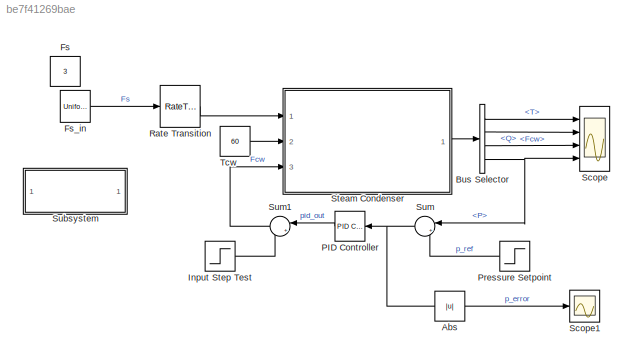
MODEL slx_be7f41269bae
KIND model
CONFIG AbsTol = auto
CONFIG EnableMultiTasking = on
CONFIG FixedStep = Ts
CONFIG InitFcn = seed = randi(10000);
CONFIG MaxStep = 0.1
CONFIG MinStep = auto
CONFIG PreLoadFcn = K=10.8;\nTI=2.56;\nTD=0;\nu=0;
CONFIG RelTol = 1e-3
CONFIG SampleTimeConstraint = Unconstrained
CONFIG SolverName = FixedStepAuto
CONFIG StartFcn = seed = randi(10000);
CONFIG StartTime = 0.0
CONFIG StopTime = T
BLOCK [Abs] Abs
  SaturateOnIntegerOverflow = off
BLOCK [BusSelector] Bus Selector
  OutputSignals = T,Fcw,Q,P
  Ports = [1, 4]
BLOCK [Constant] Fs
  Commented = on
  Value = 3
BLOCK [UniformRandomNumber] Fs_in
  Maximum = 4.01
  Minimum = 3.99
  SampleTime = 5
  Seed = seed
  VectorParams1D = off
BLOCK [Step] Input Step Test
  After = u
  SampleTime = 0
  Time = 10
BLOCK [Reference] PID Controller  REF=simulink_need_slupdate/PID Controller
  Ports = [1, 1]
  SourceBlock = simulink_need_slupdate/PID Controller
  SourceProductBaseCode = SL
  SourceType = PID Controller
BLOCK [Step] Pressure Setpoint
  After = 87
  Before = 90
  SampleTime = 0
  Time = 2
BLOCK [RateTransition] Rate Transition
  OutPortSampleTime = Ts
BLOCK [Scope] Scope
  Floating = off
  NumInputPorts = 4
  Ports = [4]
  ScopeSpecificationString = Simulink.scopes.TimeScopeBlockCfg('CurrentConfiguration', extmgr.ConfigurationSet(extmgr.Configuration('Core','General UI',true),extmgr.Configuration('Core','Source UI',true),extmgr.Configuration('Sources','WiredSimulink',true,'DataLogging',true,'DataLoggingVariableName','y','DataLoggingSaveFormat','StructureWithTime','DataLoggingDecimation','1','DataLoggingDecimateData',true),extmgr.Configuration...<+3700ch>
BLOCK [Scope] Scope1
  Floating = off
  NumInputPorts = 1
  Ports = [1]
  ScopeSpecificationString = Simulink.scopes.TimeScopeBlockCfg('CurrentConfiguration', extmgr.ConfigurationSet(extmgr.Configuration('Core','General UI',true),extmgr.Configuration('Core','Source UI',true),extmgr.Configuration('Sources','WiredSimulink',true,'DataLoggingVariableName','ScopeData1'),extmgr.Configuration('Visuals','Time Domain',true),extmgr.Configuration('Tools','Plot Navigation',true),extmgr.Configuration('Tools',...<+40ch>
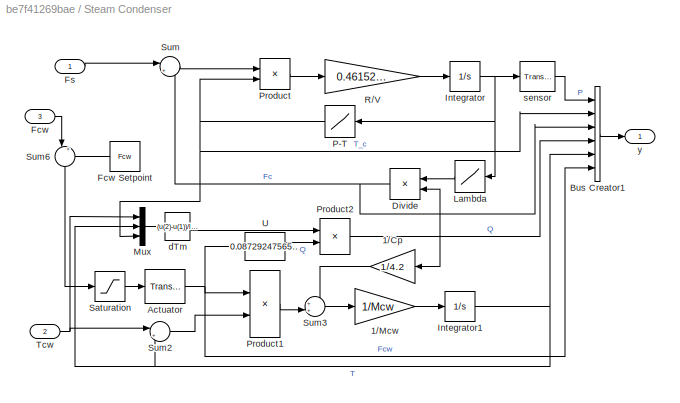
BLOCK [SubSystem] Steam Condenser
  Ports = [3, 1]
  RequestExecContextInheritance = off
BLOCK [Gain] Steam Condenser/1//Cp
  Gain = 1/4.2
  OutDataTypeStr = Inherit: Same as input
  ParamDataTypeStr = Inherit: Same as input
BLOCK [Gain] Steam Condenser/1//Mcw
  Gain = 1/Mcw
  OutDataTypeStr = Inherit: Same as input
  ParamDataTypeStr = Inherit: Same as input
BLOCK [Reference] Steam Condenser/Actuator  REF=simulink_extras/Additional
Linear/Transfer Fcn
(with initial outputs)
  Ports = [1, 1]
  SourceBlock = simulink_extras/Additional\nLinear/Transfer Fcn\n(with initial outputs)
  SourceProductBaseCode = SL
  SourceType = Transfer Function with Initial Outputs
BLOCK [BusCreator] Steam Condenser/Bus Creator1
  DisplayOption = bar
  InheritFromInputs = on
  Inputs = 6
  Ports = [6, 1]
BLOCK [Product] Steam Condenser/Divide
  InputSameDT = on
  Inputs = /*
  OutDataTypeStr = Inherit: Same as first input
  Ports = [2, 1]
  RndMeth = Zero
BLOCK [Inport] Steam Condenser/Fcw
  Port = 3
BLOCK [Constant] Steam Condenser/Fcw Setpoint
  Value = Fcw
BLOCK [Inport] Steam Condenser/Fs
BLOCK [Integrator] Steam Condenser/Integrator
  InitialCondition = P
  Ports = [1, 1]
BLOCK [Integrator] Steam Condenser/Integrator1
  InitialCondition = T
  Ports = [1, 1]
BLOCK [Lookup] Steam Condenser/Lambda
  InputValues = [50 60 70 80 90 100 110]
  Table = [2305.42 2293.64 2283.30 2274.05 2265.65 2257.92 2250.76]
BLOCK [Mux] Steam Condenser/Mux
  DisplayOption = bar
  Inputs = 3
  Ports = [3, 1]
BLOCK [Lookup] Steam Condenser/P-T
  InputValues = [50 60 70 80 90 100 110]
  Table = [81.3167 85.9258 89.9315 93.4854 96.6870 99.6059 102.2923]
BLOCK [Product] Steam Condenser/Product
  InputSameDT = on
  OutDataTypeStr = Inherit: Same as first input
  Ports = [2, 1]
  RndMeth = Zero
BLOCK [Product] Steam Condenser/Product1
  InputSameDT = on
  OutDataTypeStr = Inherit: Same as first input
  Ports = [2, 1]
  RndMeth = Zero
BLOCK [Product] Steam Condenser/Product2
  InputSameDT = on
  Inputs = */
  OutDataTypeStr = Inherit: Same as first input
  Ports = [2, 1]
  RndMeth = Zero
BLOCK [Gain] Steam Condenser/R//V
  Gain = 0.461526/V
  OutDataTypeStr = Inherit: Same as input
  ParamDataTypeStr = Inherit: Same as input
BLOCK [Saturate] Steam Condenser/Saturation
  LowerLimit = 0
  UpperLimit = 200
BLOCK [Sum] Steam Condenser/Sum
  InputSameDT = on
  Inputs = |+-
  OutDataTypeStr = Inherit: Same as first input
  Ports = [2, 1]
BLOCK [Sum] Steam Condenser/Sum2
  InputSameDT = on
  Inputs = |+-
  OutDataTypeStr = Inherit: Same as first input
  Ports = [2, 1]
BLOCK [Sum] Steam Condenser/Sum3
  InputSameDT = on
  Inputs = ++|
  OutDataTypeStr = Inherit: Same as first input
  Ports = [2, 1]
BLOCK [Sum] Steam Condenser/Sum6
  InputSameDT = on
  Inputs = |++
  NameLocation = left
  OutDataTypeStr = Inherit: Same as first input
  Ports = [2, 1]
BLOCK [Inport] Steam Condenser/Tcw
  Port = 2
BLOCK [Fcn] Steam Condenser/U
  Expr = 0.0872924756541668/u^0.8+0.00073786772008033
BLOCK [Fcn] Steam Condenser/dTm
  Expr = (u(2)-u(1))/log((u(3)-u(1))/(u(3)-u(2)))
BLOCK [Reference] Steam Condenser/sensor  REF=simulink_extras/Additional
Linear/Transfer Fcn
(with initial outputs)
  Ports = [1, 1]
  SourceBlock = simulink_extras/Additional\nLinear/Transfer Fcn\n(with initial outputs)
  SourceProductBaseCode = SL
  SourceType = Transfer Function with Initial Outputs
BLOCK [Outport] Steam Condenser/y
BLOCK [SubSystem] Subsystem
  OpenFcn = K=0;TI=1;TD=0;u=1;                                    \nsim('SteamCondenser')                                 \n[Kp,tau,td]=ReactionCurve(y.time,y.signals(4).values);\ntd=td-10;                                             \nK=-(0.9/Kp)*(tau/td);                                 \nTI=3.3*td;                                            \nu=0;                                                  \nsim('SteamConde...<+6ch>
  Ports = []
  RequestExecContextInheritance = off
BLOCK [Sum] Sum
  InputSameDT = on
  Inputs = |+-
  OutDataTypeStr = Inherit: Same as first input
  Ports = [2, 1]
BLOCK [Sum] Sum1
  InputSameDT = on
  Inputs = |++
  OutDataTypeStr = Inherit: Same as first input
  Ports = [2, 1]
BLOCK [Constant] Tcw
  Value = 60
  VectorParams1D = off
LINE Abs:1 -> Scope1:1
LINE Bus Selector:1 -> Scope:1
LINE Bus Selector:2 -> Scope:2
LINE Bus Selector:3 -> Scope:3
NET Bus Selector:4 -> Scope:4, Sum:1
LINE Fs_in:1 -> Rate Transition:1
LINE Input Step Test:1 -> Sum1:2
LINE PID Controller:1 -> Sum1:1
LINE Pressure Setpoint:1 -> Sum:2
LINE Rate Transition:1 -> Steam Condenser:1
LINE Steam Condenser/1//Cp:1 -> Steam Condenser/Sum3:1
LINE Steam Condenser/1//Mcw:1 -> Steam Condenser/Integrator1:1
NET Steam Condenser/Actuator:1 -> Steam Condenser/Bus Creator1:6, Steam Condenser/Product1:1, Steam Condenser/U:1
LINE Steam Condenser/Bus Creator1:1 -> Steam Condenser/y:1
NET Steam Condenser/Divide:1 -> Steam Condenser/Bus Creator1:3, Steam Condenser/Sum:2
LINE Steam Condenser/Fcw Setpoint:1 -> Steam Condenser/Sum6:2
LINE Steam Condenser/Fcw:1 -> Steam Condenser/Sum6:1
LINE Steam Condenser/Fs:1 -> Steam Condenser/Sum:1
NET Steam Condenser/Integrator1:1 -> Steam Condenser/Bus Creator1:5, Steam Condenser/Mux:2, Steam Condenser/Sum2:2
NET Steam Condenser/Integrator:1 -> Steam Condenser/Lambda:1, Steam Condenser/P-T:1, Steam Condenser/sensor:1
LINE Steam Condenser/Lambda:1 -> Steam Condenser/Divide:1
LINE Steam Condenser/Mux:1 -> Steam Condenser/dTm:1
NET Steam Condenser/P-T:1 -> Steam Condenser/Bus Creator1:2, Steam Condenser/Mux:3, Steam Condenser/Product:2
LINE Steam Condenser/Product1:1 -> Steam Condenser/Sum3:2
NET Steam Condenser/Product2:1 -> Steam Condenser/1//Cp:1, Steam Condenser/Bus Creator1:4, Steam Condenser/Divide:2
LINE Steam Condenser/Product:1 -> Steam Condenser/R//V:1
LINE Steam Condenser/R//V:1 -> Steam Condenser/Integrator:1
LINE Steam Condenser/Saturation:1 -> Steam Condenser/Actuator:1
LINE Steam Condenser/Sum2:1 -> Steam Condenser/Product1:2
LINE Steam Condenser/Sum3:1 -> Steam Condenser/1//Mcw:1
LINE Steam Condenser/Sum6:1 -> Steam Condenser/Saturation:1
LINE Steam Condenser/Sum:1 -> Steam Condenser/Product:1
NET Steam Condenser/Tcw:1 -> Steam Condenser/Mux:1, Steam Condenser/Sum2:1
LINE Steam Condenser/U:1 -> Steam Condenser/Product2:2
LINE Steam Condenser/dTm:1 -> Steam Condenser/Product2:1
LINE Steam Condenser/sensor:1 -> Steam Condenser/Bus Creator1:1
LINE Steam Condenser:1 -> Bus Selector:1
LINE Sum1:1 -> Steam Condenser:3
NET Sum:1 -> Abs:1, PID Controller:1
LINE Tcw:1 -> Steam Condenser:2
note: NET lines group one-source signal fan-out (src -> all destinations, sorted); 1:1 wires keep LINE
